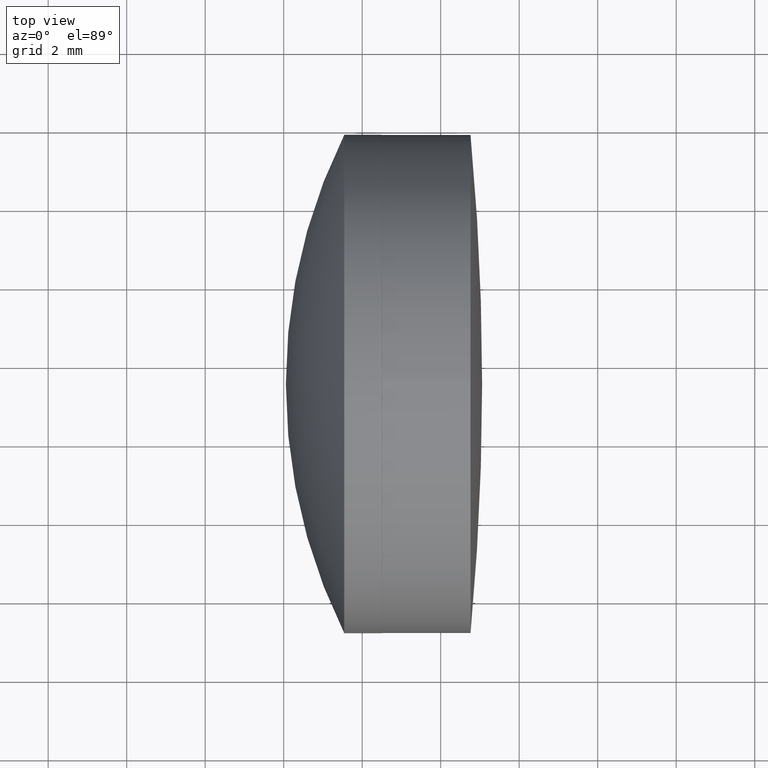
[diagram: clean part render]
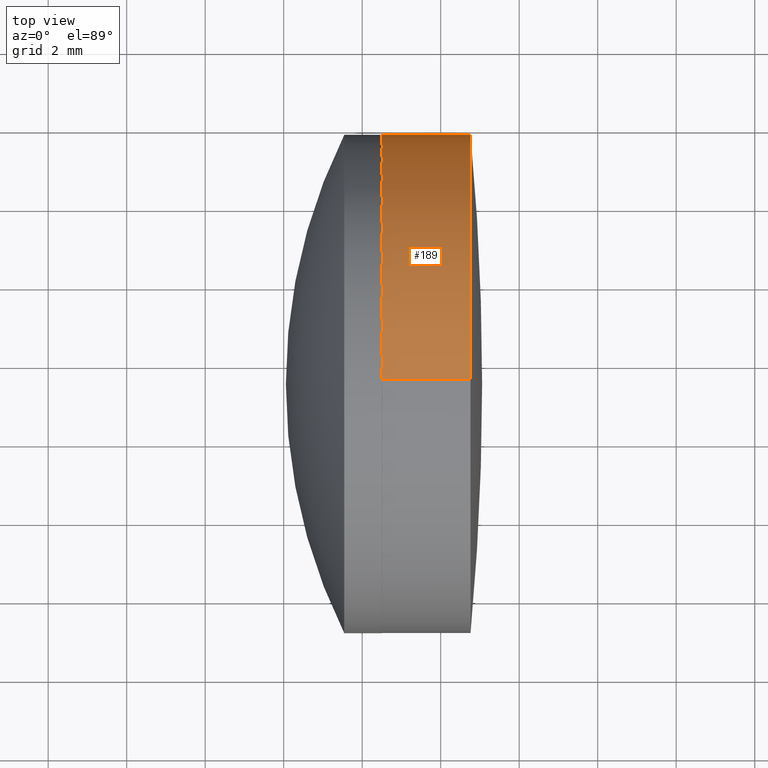
[diagram: same view with one face highlighted and labeled with its STEP entity id]
A machine part, top view. The second image highlights one B-rep face of the part: STEP entity #189.
In plain terms, the highlighted cylindrical surface (partial cylindrical patch) has radius 6.3431 mm, axis along (-1, -0, -0).
Its self-contained STEP definition (entity closure, byte-faithful):
#11 = DIRECTION ( 'NONE',  ( -1.000000000000000000, -0.000000000000000000, -0.000000000000000000 ) ) ;
#15 = LINE ( 'NONE', #168, #342 ) ;
#25 = VERTEX_POINT ( 'NONE', #234 ) ;
#32 = CARTESIAN_POINT ( 'NONE',  ( -2.549259475138383468, 0.000000000000000000, 0.000000000000000000 ) ) ;
#61 = CIRCLE ( 'NONE', #257, 6.343139272828734576 ) ;
#72 = AXIS2_PLACEMENT_3D ( 'NONE', #372, #281, #83 ) ;
#75 = EDGE_CURVE ( 'NONE', #449, #179, #61, .T. ) ;
#82 = CARTESIAN_POINT ( 'NONE',  ( -0.2951002634660471191, 0.000000000000000000, 0.000000000000000000 ) ) ;
#83 = DIRECTION ( 'NONE',  ( 0.000000000000000000, 0.000000000000000000, 1.000000000000000000 ) ) ;
#87 = CARTESIAN_POINT ( 'NONE',  ( -2.549259475138383468, 6.343139272828733688, 0.000000000000000000 ) ) ;
#124 = CARTESIAN_POINT ( 'NONE',  ( -1.000000000000000000, 7.768105207015588521E-16, -6.343139272828741682 ) ) ;
#153 = ORIENTED_EDGE ( 'NONE', *, *, #396, .F. ) ;
#154 = EDGE_CURVE ( 'NONE', #458, #407, #443, .T. ) ;
#158 = EDGE_LOOP ( 'NONE', ( #319, #220, #611, #153, #162, #357 ) ) ;
#159 = AXIS2_PLACEMENT_3D ( 'NONE', #188, #391, #530 ) ;
#162 = ORIENTED_EDGE ( 'NONE', *, *, #75, .F. ) ;
#168 = CARTESIAN_POINT ( 'NONE',  ( -1.000000000000000000, 0.000000000000000000, 6.343139272828741682 ) ) ;
#179 = VERTEX_POINT ( 'NONE', #87 ) ;
#185 = DIRECTION ( 'NONE',  ( -1.000000000000000000, -0.000000000000000000, -0.000000000000000000 ) ) ;
#188 = CARTESIAN_POINT ( 'NONE',  ( -1.000000000000000000, 0.000000000000000000, 0.000000000000000000 ) ) ;
#189 = ADVANCED_FACE ( 'NONE', ( #434 ), #636, .T. ) ;
#220 = ORIENTED_EDGE ( 'NONE', *, *, #546, .T. ) ;
#231 = DIRECTION ( 'NONE',  ( 0.000000000000000000, 0.000000000000000000, 1.000000000000000000 ) ) ;
#234 = CARTESIAN_POINT ( 'NONE',  ( -0.2951002634660471191, 7.768105207015596409E-16, -6.343139272828748787 ) ) ;
#238 = AXIS2_PLACEMENT_3D ( 'NONE', #573, #185, #579 ) ;
#257 = AXIS2_PLACEMENT_3D ( 'NONE', #32, #382, #231 ) ;
#270 = CIRCLE ( 'NONE', #238, 6.343139272828748787 ) ;
#278 = DIRECTION ( 'NONE',  ( -1.000000000000000000, -0.000000000000000000, -0.000000000000000000 ) ) ;
#281 = DIRECTION ( 'NONE',  ( -1.000000000000000000, -0.000000000000000000, -0.000000000000000000 ) ) ;
#303 = CIRCLE ( 'NONE', #72, 6.343139272828734576 ) ;
#306 = EDGE_CURVE ( 'NONE', #458, #449, #15, .T. ) ;
#319 = ORIENTED_EDGE ( 'NONE', *, *, #154, .T. ) ;
#328 = CARTESIAN_POINT ( 'NONE',  ( -0.2951002634660471191, 0.000000000000000000, 6.343139272828748787 ) ) ;
#342 = VECTOR ( 'NONE', #11, 1000.000000000000000 ) ;
#357 = ORIENTED_EDGE ( 'NONE', *, *, #306, .F. ) ;
#372 = CARTESIAN_POINT ( 'NONE',  ( -2.549259475138383468, 0.000000000000000000, 0.000000000000000000 ) ) ;
#382 = DIRECTION ( 'NONE',  ( -1.000000000000000000, -0.000000000000000000, -0.000000000000000000 ) ) ;
#391 = DIRECTION ( 'NONE',  ( -1.000000000000000000, -0.000000000000000000, -0.000000000000000000 ) ) ;
#396 = EDGE_CURVE ( 'NONE', #179, #523, #303, .T. ) ;
#407 = VERTEX_POINT ( 'NONE', #431 ) ;
#429 = CARTESIAN_POINT ( 'NONE',  ( -2.549259475138383468, 0.000000000000000000, 6.343139272828734576 ) ) ;
#431 = CARTESIAN_POINT ( 'NONE',  ( -0.2951002634660471191, 6.343139272828758557, 0.000000000000000000 ) ) ;
#434 = FACE_OUTER_BOUND ( 'NONE', #158, .T. ) ;
#443 = CIRCLE ( 'NONE', #585, 6.343139272828748787 ) ;
#449 = VERTEX_POINT ( 'NONE', #429 ) ;
#455 = EDGE_CURVE ( 'NONE', #25, #523, #524, .T. ) ;
#458 = VERTEX_POINT ( 'NONE', #328 ) ;
#523 = VERTEX_POINT ( 'NONE', #527 ) ;
#524 = LINE ( 'NONE', #124, #542 ) ;
#527 = CARTESIAN_POINT ( 'NONE',  ( -2.549259475138383468, 7.768105207015584577E-16, -6.343139272828734576 ) ) ;
#530 = DIRECTION ( 'NONE',  ( 0.000000000000000000, 0.000000000000000000, 1.000000000000000000 ) ) ;
#542 = VECTOR ( 'NONE', #278, 1000.000000000000000 ) ;
#546 = EDGE_CURVE ( 'NONE', #407, #25, #270, .T. ) ;
#572 = DIRECTION ( 'NONE',  ( 0.000000000000000000, 0.000000000000000000, 1.000000000000000000 ) ) ;
#573 = CARTESIAN_POINT ( 'NONE',  ( -0.2951002634660471191, 0.000000000000000000, 0.000000000000000000 ) ) ;
#579 = DIRECTION ( 'NONE',  ( 0.000000000000000000, 0.000000000000000000, 1.000000000000000000 ) ) ;
#585 = AXIS2_PLACEMENT_3D ( 'NONE', #82, #629, #572 ) ;
#611 = ORIENTED_EDGE ( 'NONE', *, *, #455, .T. ) ;
#629 = DIRECTION ( 'NONE',  ( -1.000000000000000000, -0.000000000000000000, -0.000000000000000000 ) ) ;
#636 = CYLINDRICAL_SURFACE ( 'NONE', #159, 6.343139272828741682 ) ;